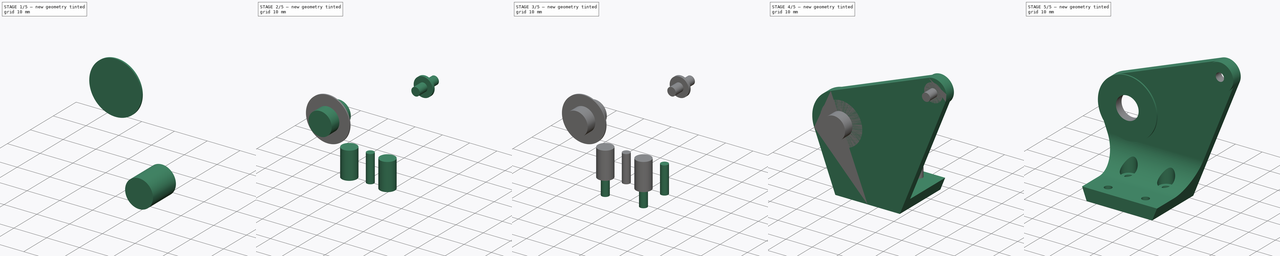
[diagram: build sequence overview — one tinted view per stage of 5, left to right]
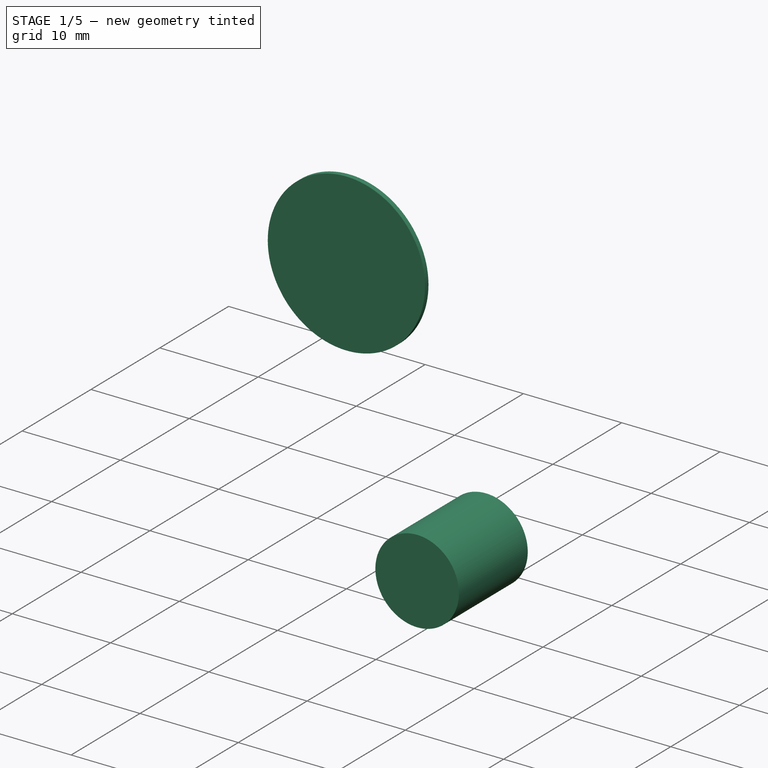
[diagram: stage 1 of 5 — iso view after this stage's code; geometry added in this stage tinted green]
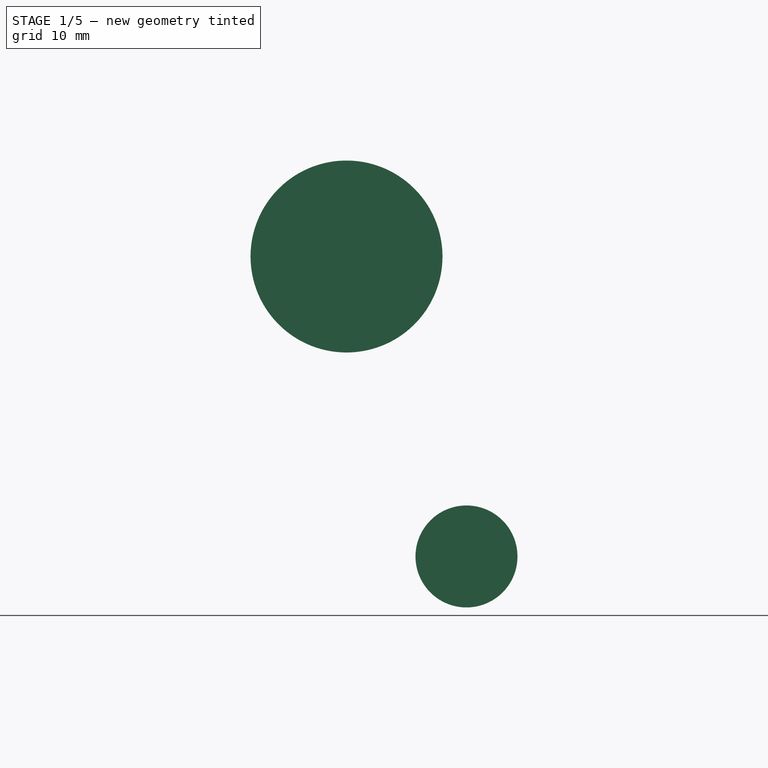
[diagram: stage 1 of 5 — front view after this stage's code; geometry added in this stage tinted green]
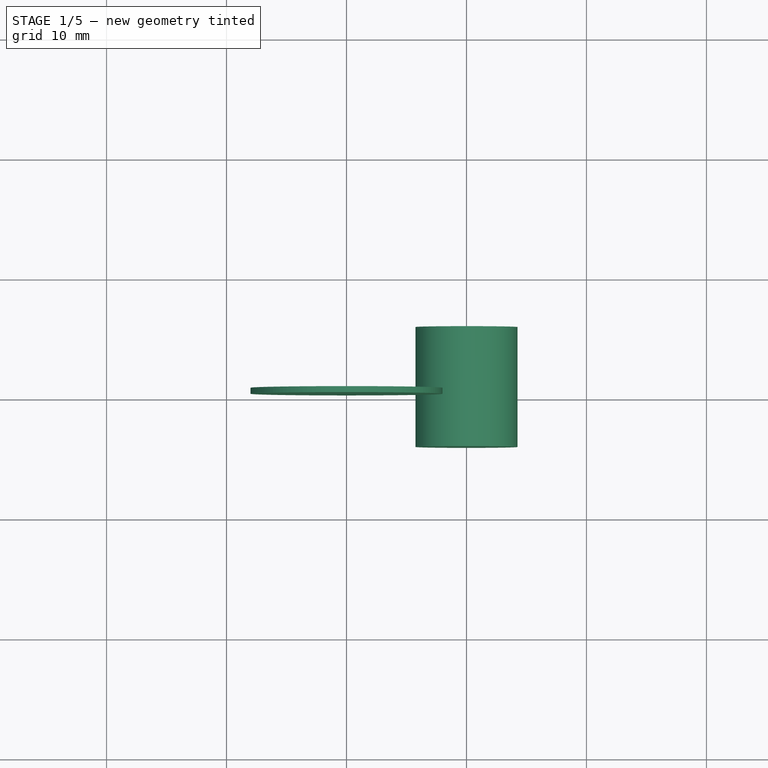
[diagram: stage 1 of 5 — top view after this stage's code; geometry added in this stage tinted green]
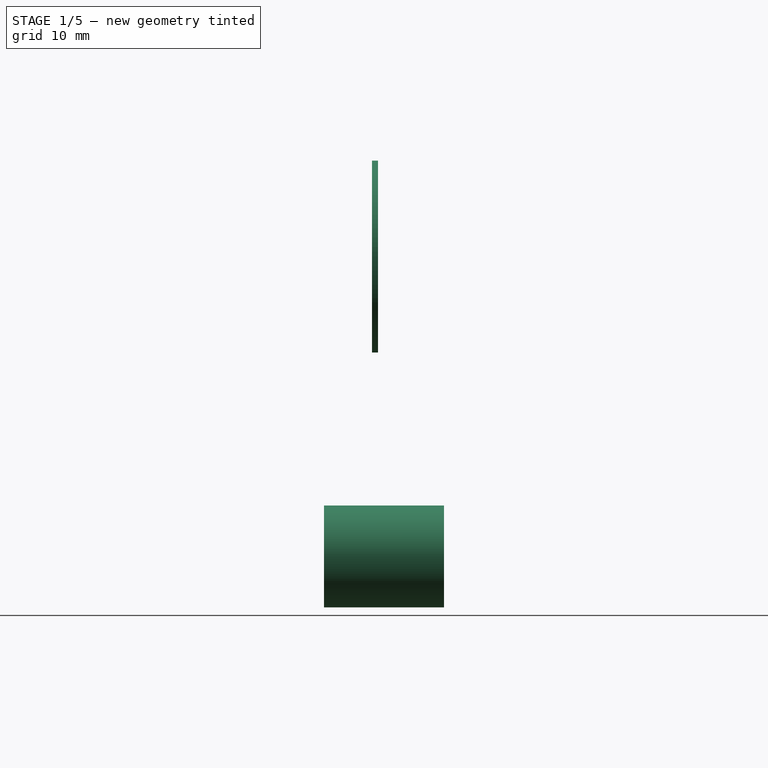
[diagram: stage 1 of 5 — right view after this stage's code; geometry added in this stage tinted green]
FCSTD DOCUMENT  (FreeCAD 0.15R4671 (Git))
Label: top_arm_support_w_tendon_opposite
License: CC-BY 3.0
LicenseURL: http://creativecommons.org/licenses/by/3.0/
objects: Part::Cylinder×15, Part::MultiFuse×6, Part::Cut×2, Sketcher::SketchObject×1, Part::Extrusion×1, Part::Box×1, Part::Fillet×1, Part::Mirroring×1
note: 28 computed .brp shape members not serialized (recipe doc carries the construction recipe); baked Part::Feature solids carry a one-line shape summary decoded from their .brp

FEATURE [Part::Cylinder] Cylinder
  Angle = 360
  Height = 10
  Placement = pos=(0,-4,0) rot=(-1,0,0;1.5708rad)
  Radius = 4.25
FEATURE [Part::Cylinder] Cylinder001
  Angle = 360
  Height = 10
  Placement = pos=(0,-4,0) rot=(-1,0,0;1.5708rad)
  Radius = 1.1
FEATURE [Part::Cylinder] Cylinder002
  Angle = 360
  Height = 10
  Placement = pos=(0,-4,0) rot=(-1,0,0;1.5708rad)
  Radius = 1.1
FEATURE [Part::Cylinder] Cylinder003
  Angle = 360
  Height = 10
  Placement = pos=(0,-4,0) rot=(-1,0,0;1.5708rad)
  Radius = 1.1
FEATURE [Part::Cylinder] Cylinder014
  Angle = 360
  Height = 0.5
  Placement = pos=(-10,0.5,25) rot=(1,0,0;1.5708rad)
  Radius = 8
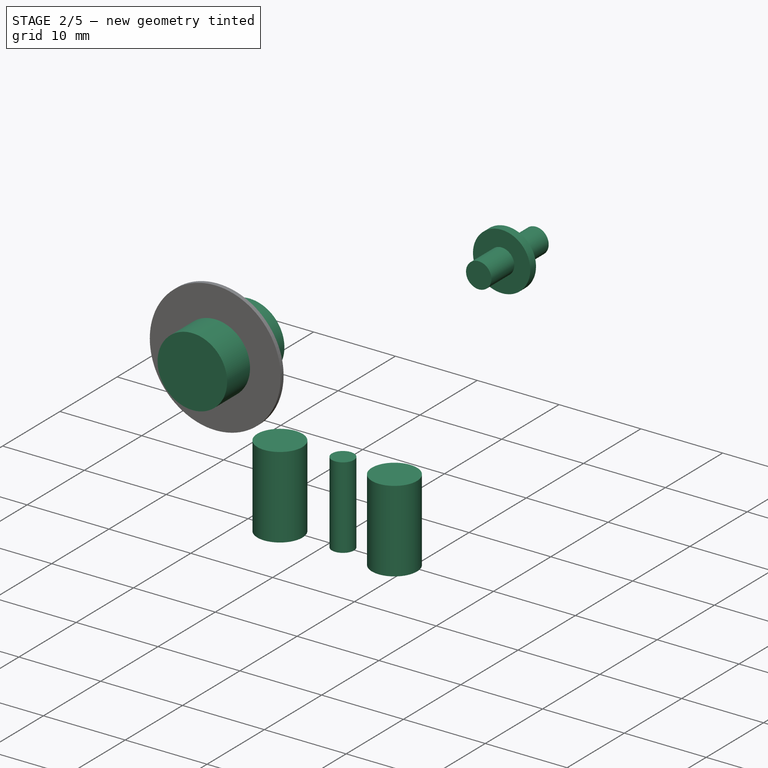
[diagram: stage 2 of 5 — iso view after this stage's code; geometry added in this stage tinted green]
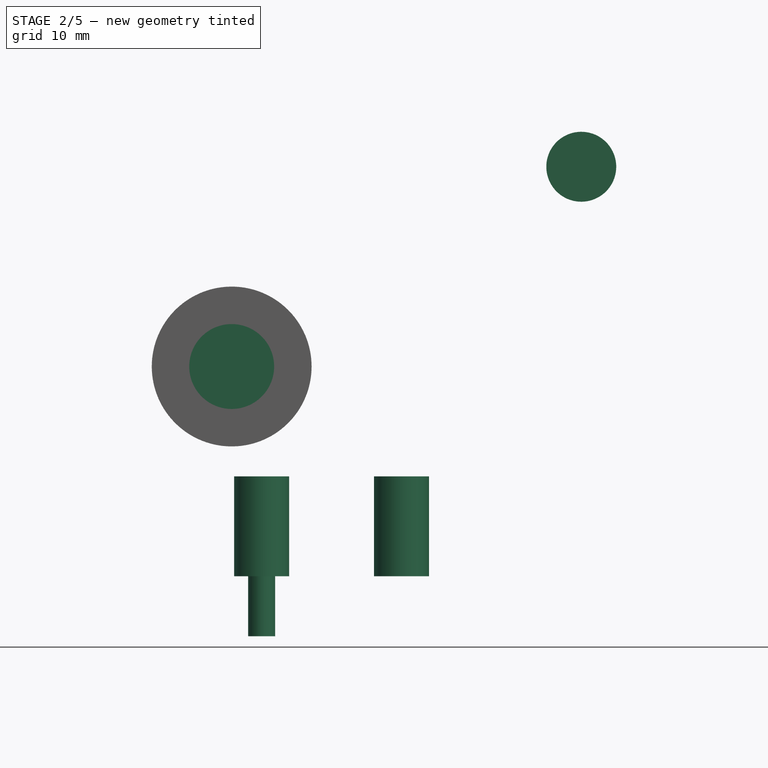
[diagram: stage 2 of 5 — front view after this stage's code; geometry added in this stage tinted green]
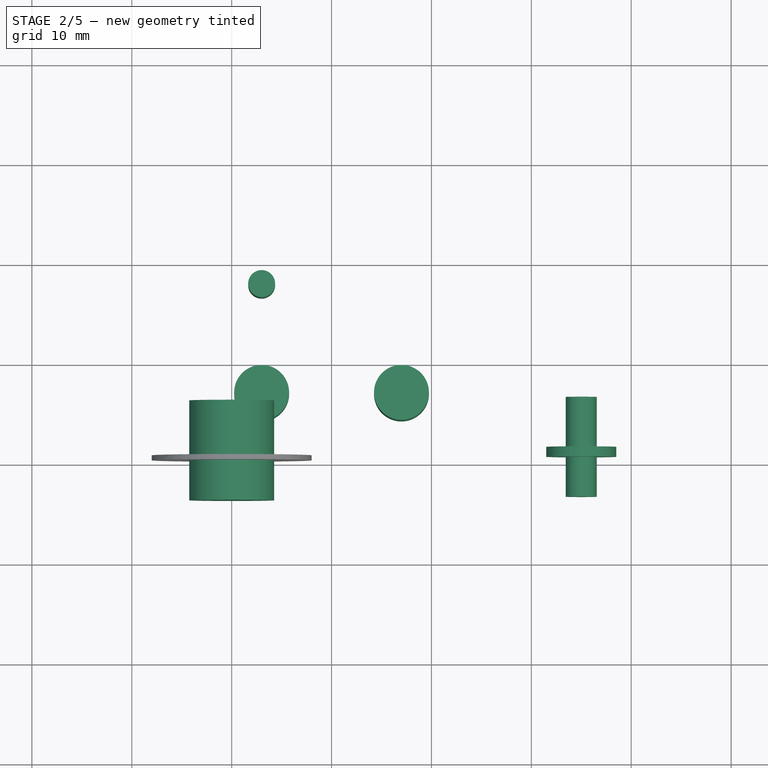
[diagram: stage 2 of 5 — top view after this stage's code; geometry added in this stage tinted green]
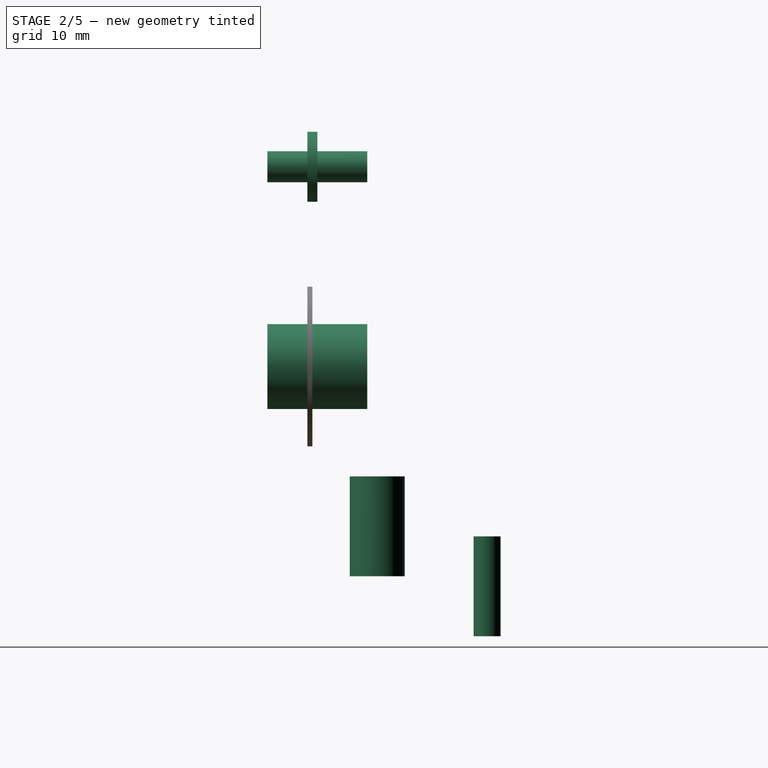
[diagram: stage 2 of 5 — right view after this stage's code; geometry added in this stage tinted green]
FEATURE [Part::Cylinder] Cylinder007
  Angle = 360
  Height = 10
  Placement = pos=(-7,18,-2) rot=(0,0,1;0rad)
  Radius = 1.35
FEATURE [Part::Cylinder] Cylinder008
  Angle = 360
  Height = 10
  Placement = pos=(7,7,4) rot=(0,0,1;0rad)
  Radius = 2.75
FEATURE [Part::Cylinder] Cylinder009
  Angle = 360
  Height = 10
  Placement = pos=(-7,7,4) rot=(0,0,1;0rad)
  Radius = 2.75
FEATURE [Part::Cylinder] Cylinder011
  Angle = 360
  Height = 10
  Placement = pos=(25,6,45) rot=(1,0,0;1.5708rad)
  Radius = 1.55
FEATURE [Part::Cylinder] Cylinder012
  Angle = 360
  Height = 1
  Placement = pos=(25,1,45) rot=(1,0,0;1.5708rad)
  Radius = 3.5
FEATURE [Part::MultiFuse] Fusion
  Placement = pos=(-10,0,25) rot=(0,0,1;0rad)
  Shapes = -> [Cylinder,Cylinder002,Cylinder003,Cylinder001]
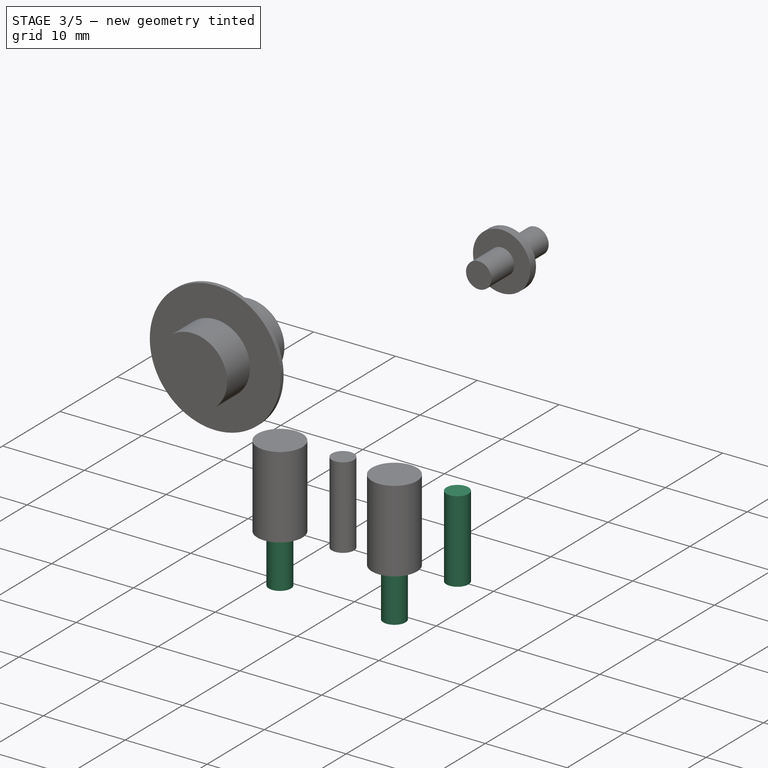
[diagram: stage 3 of 5 — iso view after this stage's code; geometry added in this stage tinted green]
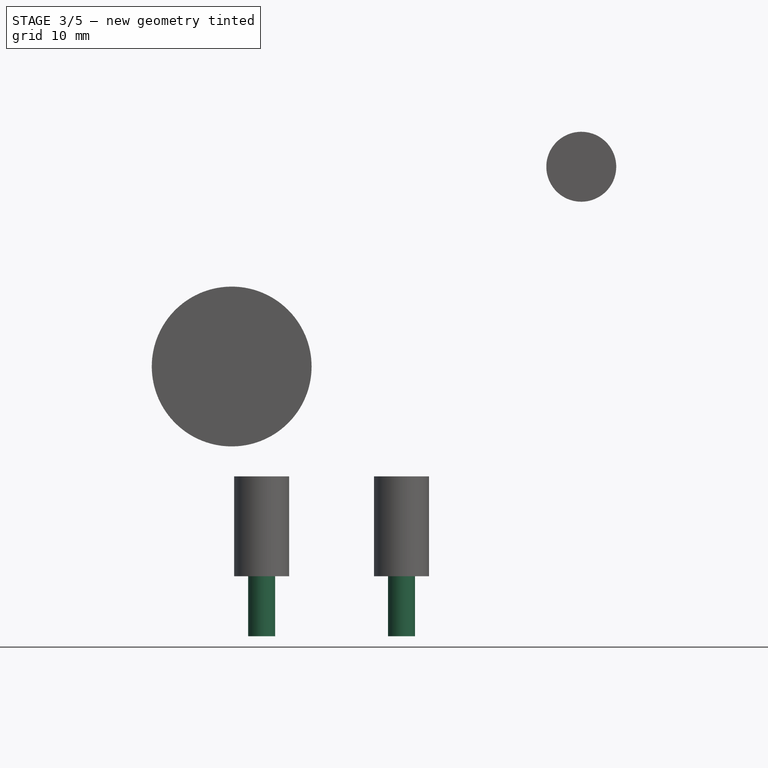
[diagram: stage 3 of 5 — front view after this stage's code; geometry added in this stage tinted green]
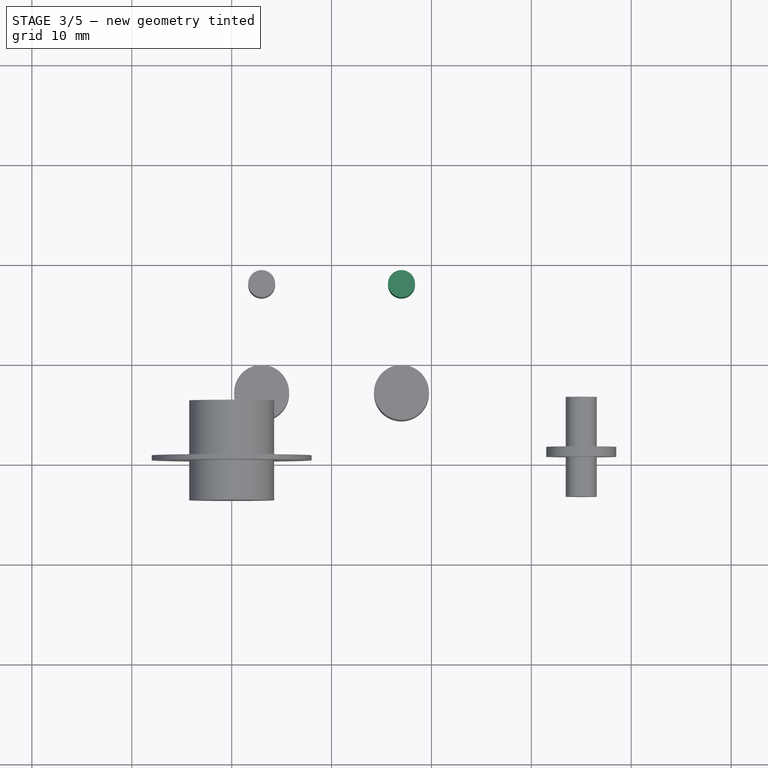
[diagram: stage 3 of 5 — top view after this stage's code; geometry added in this stage tinted green]
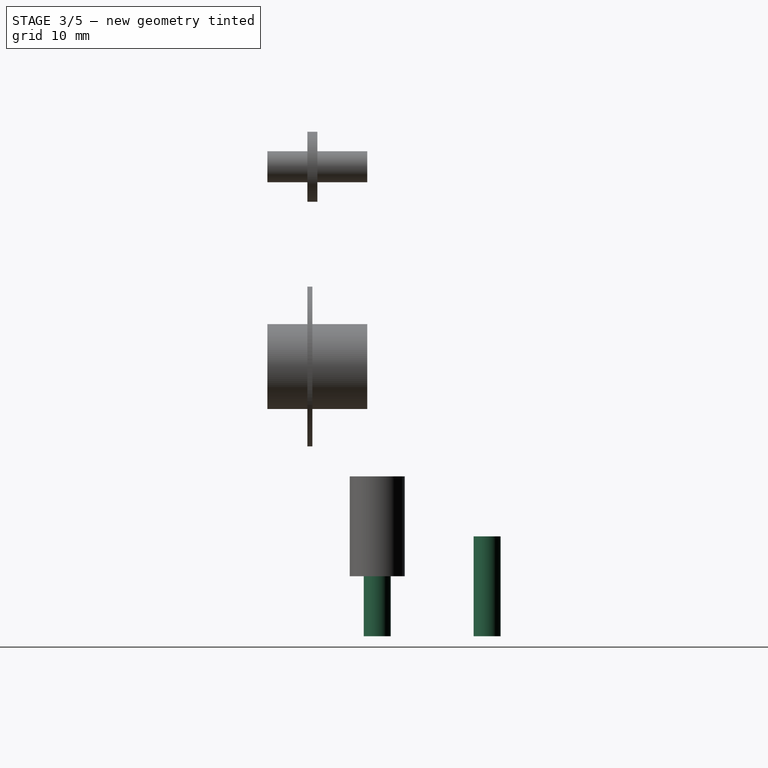
[diagram: stage 3 of 5 — right view after this stage's code; geometry added in this stage tinted green]
FEATURE [Part::Cylinder] Cylinder004
  Angle = 360
  Height = 10
  Placement = pos=(7,7,-2) rot=(0,0,1;0rad)
  Radius = 1.35
FEATURE [Part::Cylinder] Cylinder005
  Angle = 360
  Height = 10
  Placement = pos=(-7,7,-2) rot=(0,0,1;0rad)
  Radius = 1.35
FEATURE [Part::Cylinder] Cylinder006
  Angle = 360
  Height = 10
  Placement = pos=(7,18,-2) rot=(0,0,1;0rad)
  Radius = 1.35
FEATURE [Part::MultiFuse] Fusion001
  Shapes = -> [Cylinder004,Cylinder005,Cylinder007,Cylinder008,Cylinder009,Cylinder006]
FEATURE [Part::MultiFuse] Fusion004
  Shapes = -> [Fusion001,Fusion,Cylinder012,Cylinder011]
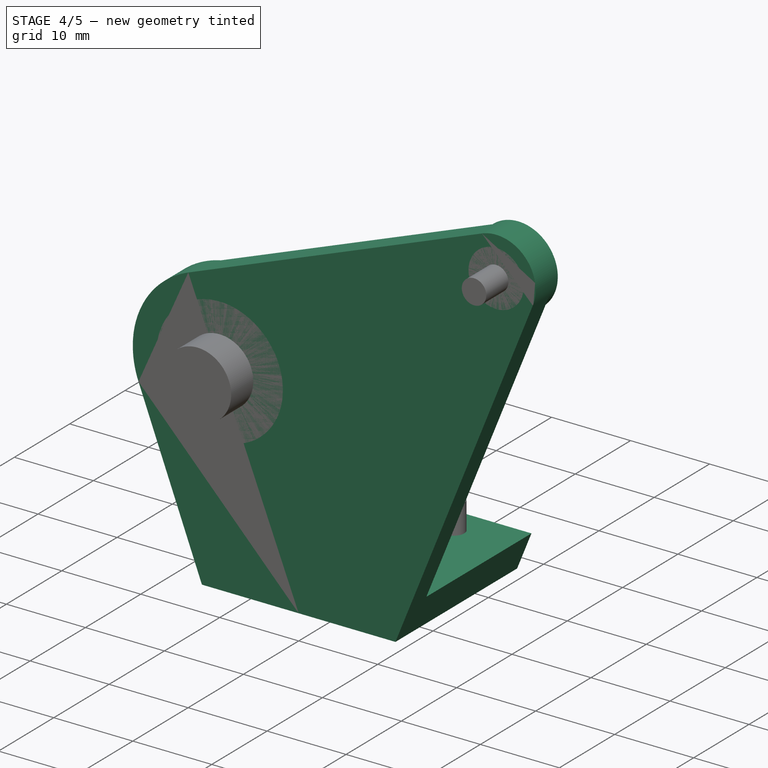
[diagram: stage 4 of 5 — iso view after this stage's code; geometry added in this stage tinted green]
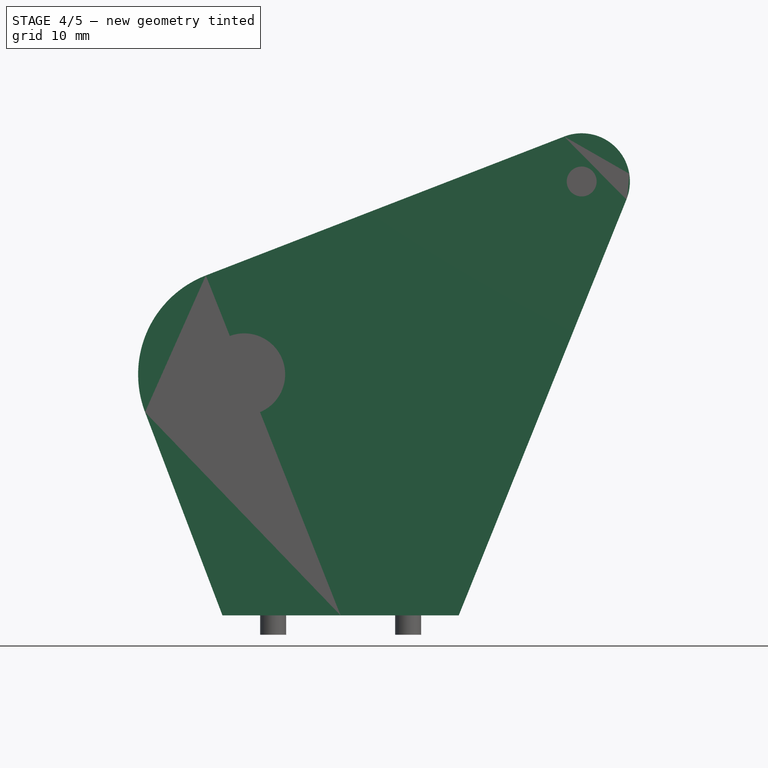
[diagram: stage 4 of 5 — front view after this stage's code; geometry added in this stage tinted green]
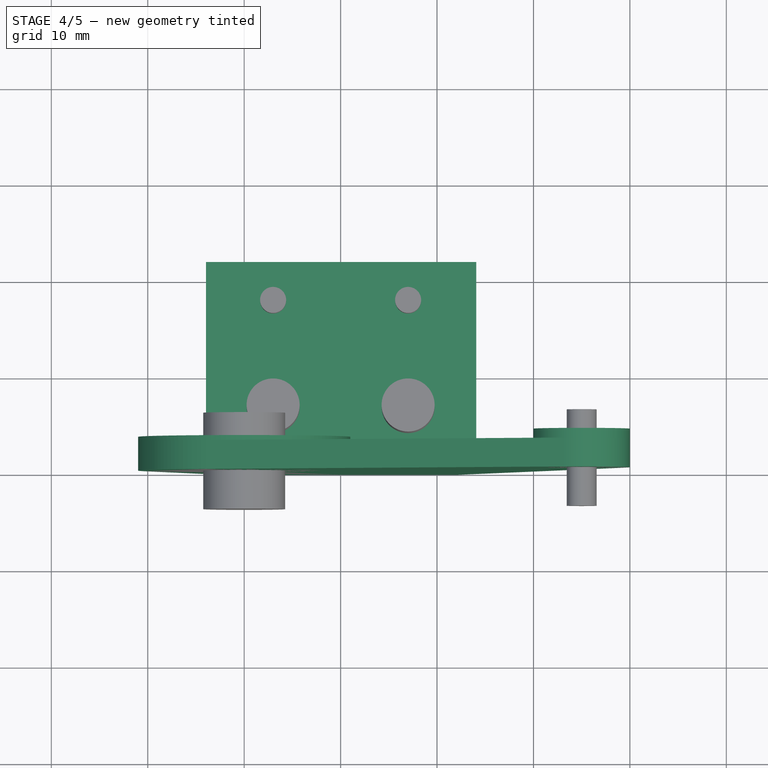
[diagram: stage 4 of 5 — top view after this stage's code; geometry added in this stage tinted green]
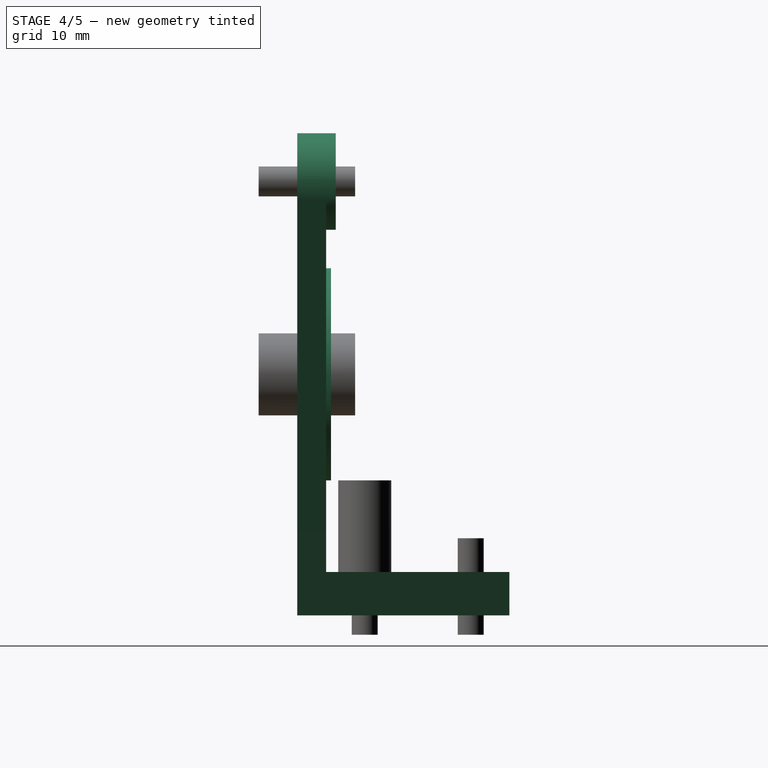
[diagram: stage 4 of 5 — right view after this stage's code; geometry added in this stage tinted green]
FEATURE [Sketcher::SketchObject] Sketch
  Placement = pos=(0,0,0) rot=(1,0,0;1.5708rad)
  sketch-geometry (7):
    g0: ArcOfCircle CenterX=-10 CenterY=25 CenterZ=0 NormalX=0 NormalY=0 NormalZ=1 Radius=11 StartAngle=1.94055 EndAngle=3.50546
    g1: LineSegment StartX=0 StartY=0 StartZ=0 EndX=-12.25 EndY=0 EndZ=0
    g2: LineSegment StartX=0 StartY=0 StartZ=0 EndX=12.25 EndY=0 EndZ=0
    g3: LineSegment StartX=-12.25 StartY=0 StartZ=0 EndX=-20.2798 EndY=21.0852 EndZ=0
    g4: LineSegment StartX=12.25 StartY=0 StartZ=0 EndX=29.6374 EndY=43.1305 EndZ=0
    g5: ArcOfCircle CenterX=25 CenterY=45 CenterZ=0 NormalX=0 NormalY=0 NormalZ=1 Radius=5 StartAngle=5.89998 EndAngle=8.22373
    g6: LineSegment StartX=-13.9752 StartY=35.2566 StartZ=0 EndX=23.1931 EndY=49.6621 EndZ=0
  constraints (22):
    c: Radius(g0) = 11
    c: DistanceY(g0) = 25
    c: Coincident(g1,g-1)
    c: Horizontal(g1)
    c: DistanceX(g1) = -12.25
    c: Coincident(g2,g-1)
    c: Horizontal(g2)
    c: DistanceX(g2) = 12.25
    c: Coincident(g3,g1)
    c: Tangent(g3,g0)
    c: Coincident(g0,g3)
    c: DistanceX(g0) = -10
    c: Coincident(g4,g2)
    c: Coincident(g5,g4)
    c: DistanceY(g5) = 45
    c: DistanceX(g5) = 25
    c: Tangent(g4,g5) = -1.5708
    c: Coincident(g6,g0)
    c: Coincident(g6,g5)
    c: Tangent(g6,g0)
    c: Radius(g5) = 5
    c: Tangent(g6,g5)
FEATURE [Part::Extrusion] Extrude
  Base = -> Sketch
  Dir = (0,22,0)
  Solid = true
FEATURE [Part::Box] Box
  Height = 100
  Length = 100
  Placement = pos=(-50,3,4.5) rot=(0,0,1;0rad)
  Width = 100
FEATURE [Part::Cut] Cut
  Base = -> Extrude
  Tool = -> Box
FEATURE [Part::Cylinder] Cylinder010
  Angle = 360
  Height = 1
  Placement = pos=(25,4,45) rot=(1,0,0;1.5708rad)
  Radius = 5
FEATURE [Part::Cylinder] Cylinder013
  Angle = 360
  Height = 0.5
  Placement = pos=(-10,3.5,25) rot=(1,0,0;1.5708rad)
  Radius = 11
FEATURE [Part::MultiFuse] Fusion006
  Shapes = -> [Cylinder014,Fusion004]
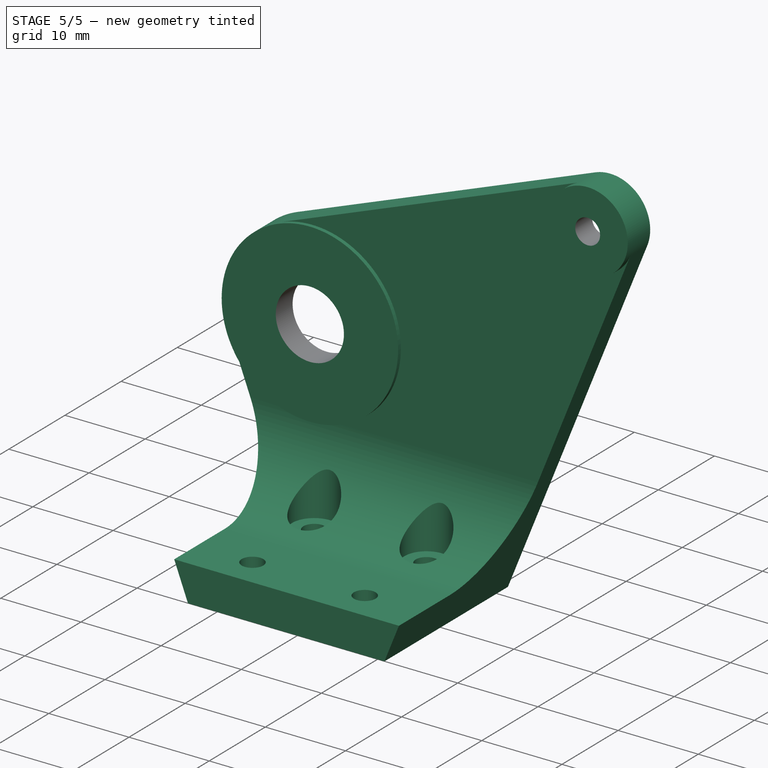
[diagram: stage 5 of 5 — iso view after this stage's code; geometry added in this stage tinted green]
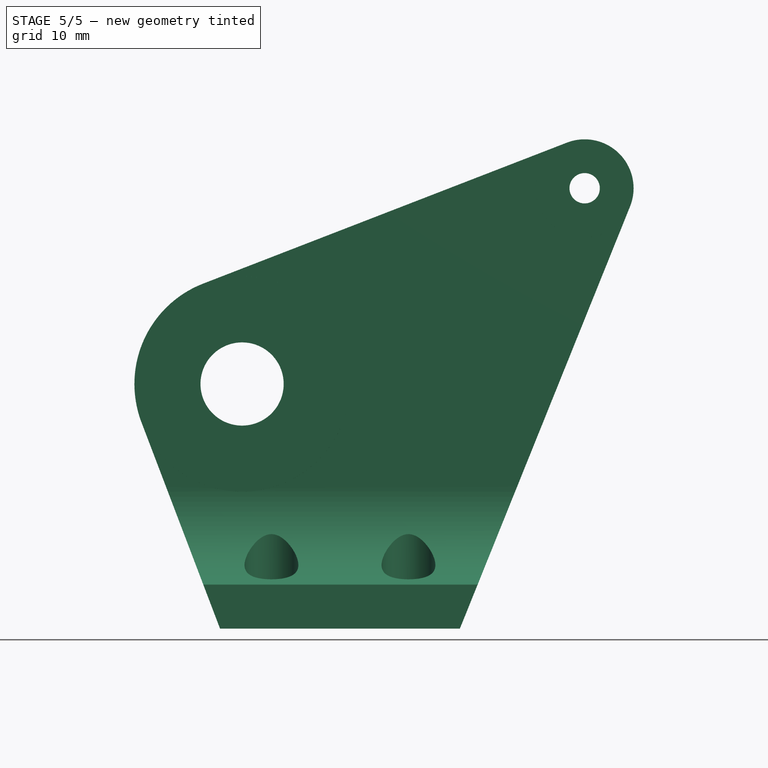
[diagram: stage 5 of 5 — front view after this stage's code; geometry added in this stage tinted green]
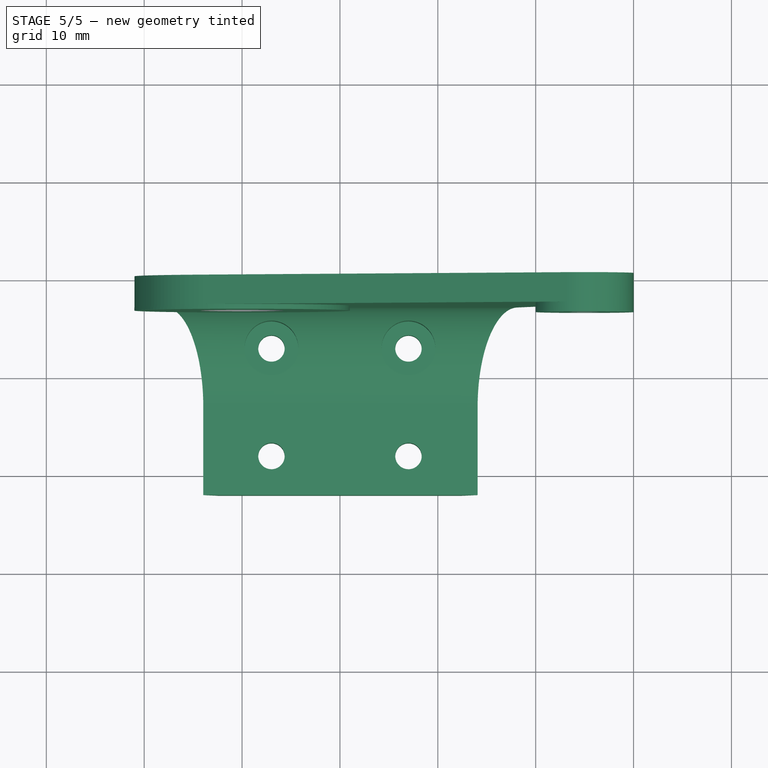
[diagram: stage 5 of 5 — top view after this stage's code; geometry added in this stage tinted green]
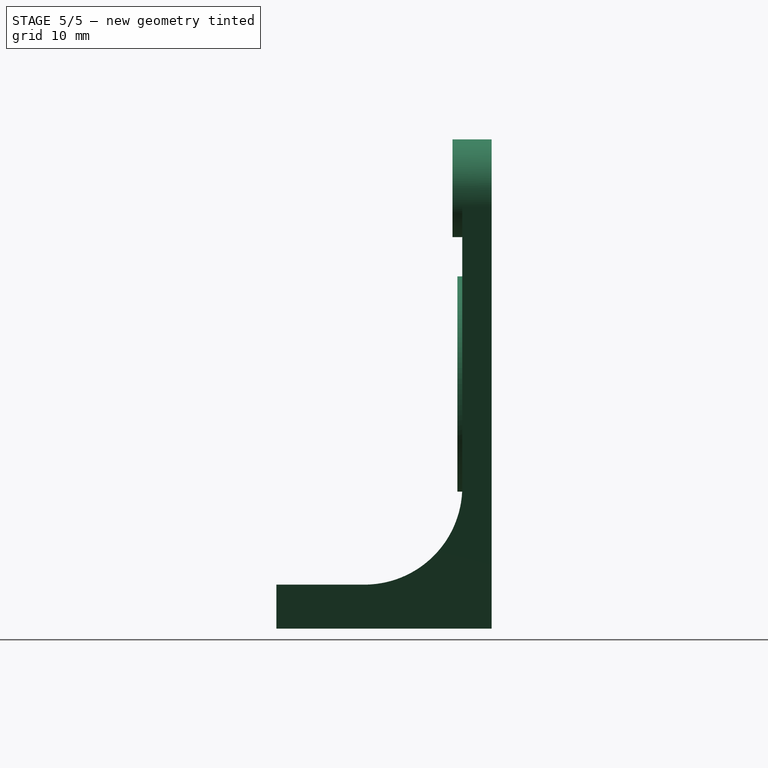
[diagram: stage 5 of 5 — right view after this stage's code; geometry added in this stage tinted green]
FEATURE [Part::MultiFuse] Fusion003
  Shapes = -> [Cylinder010,Cut]
FEATURE [Part::Fillet] Fillet
  Base = -> Fusion003
  Edges = 1 edges r=10: [Edge9]
FEATURE [Part::MultiFuse] Fusion005
  Shapes = -> [Cylinder013,Fillet]
FEATURE [Part::Cut] Cut001
  Base = -> Fusion005
  Tool = -> Fusion006
FEATURE [Part::Mirroring] Part__Mirroring  label="Cut001 (Mirror #1)"
  Base = (0,0,0)
  Normal = (0,1,0)
  Source = -> Cut001
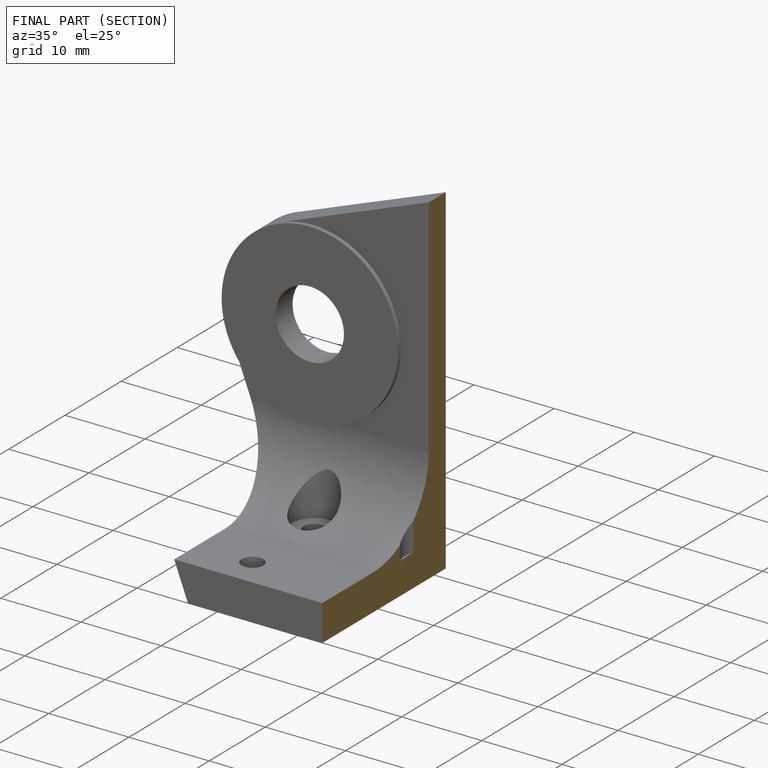
[diagram: finished part — half-section view (interior)]
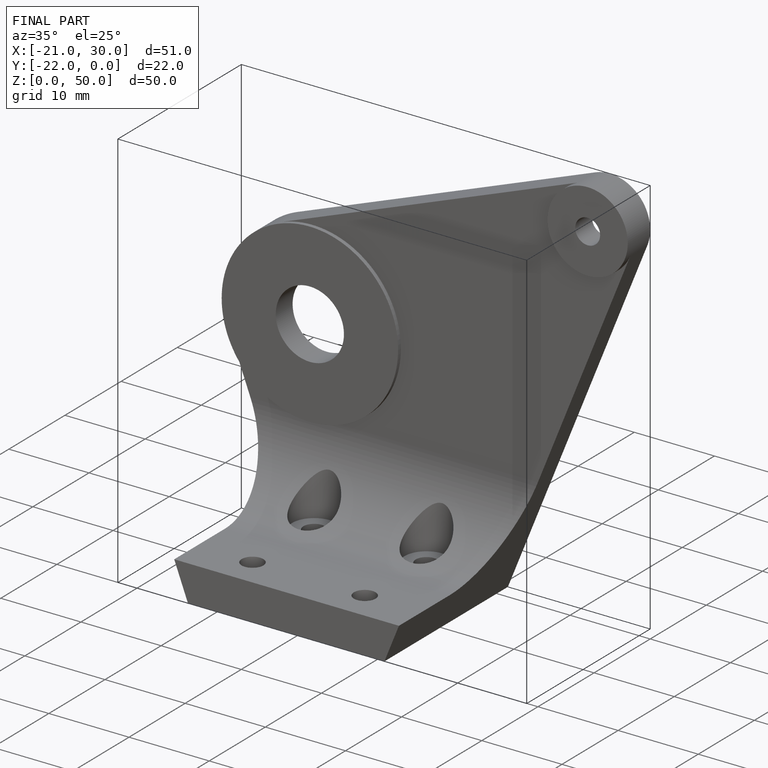
[diagram: finished part — iso view with bounding-box wireframe]
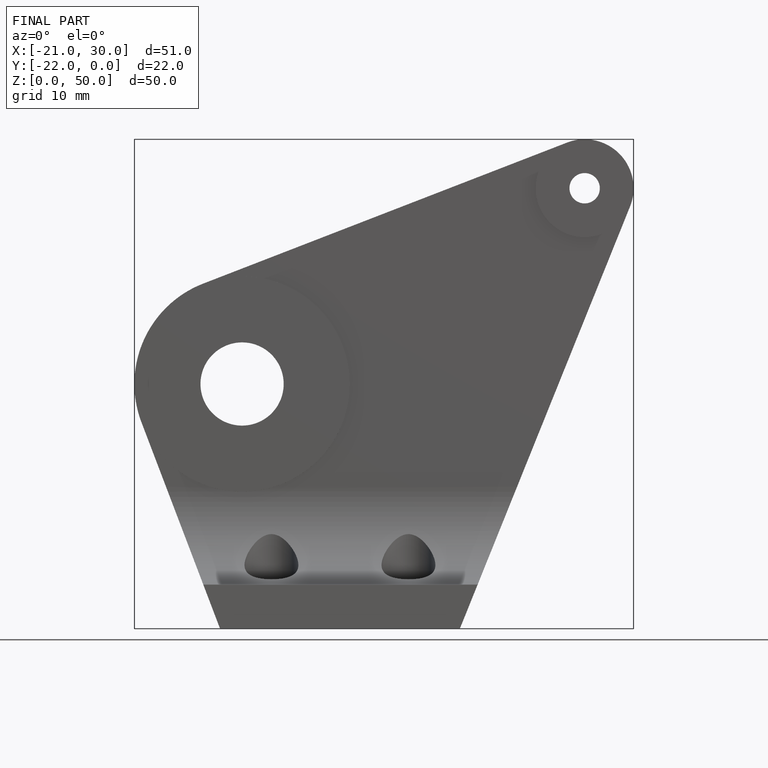
[diagram: finished part — front view with bounding-box wireframe]
